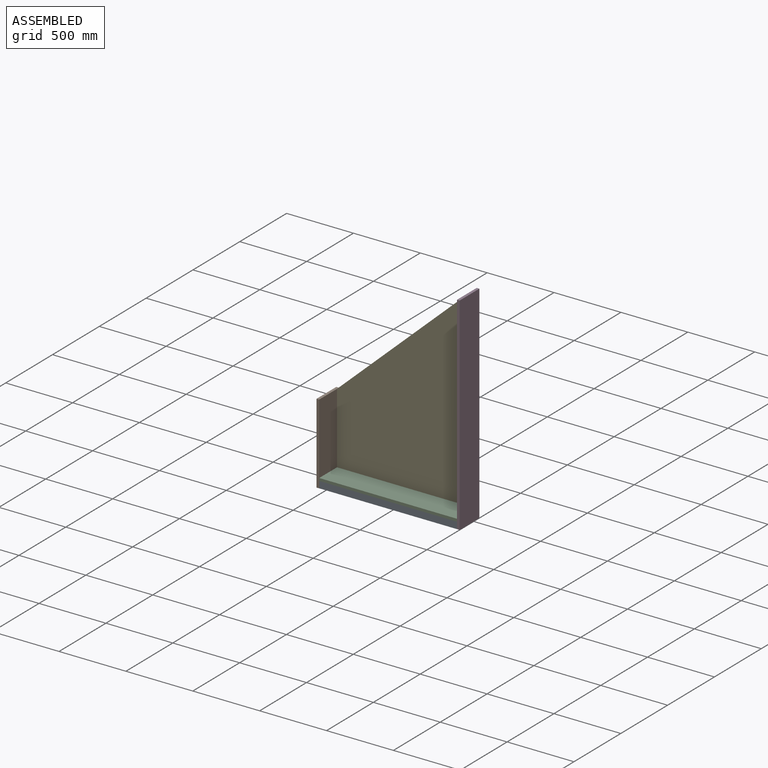
[diagram: assembled view]
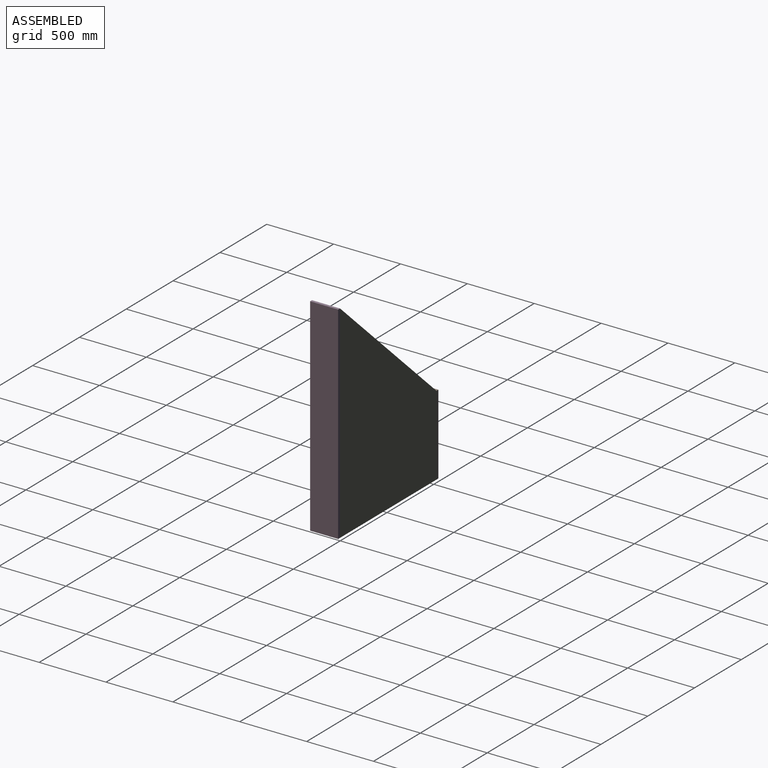
[diagram: assembled view, second angle]
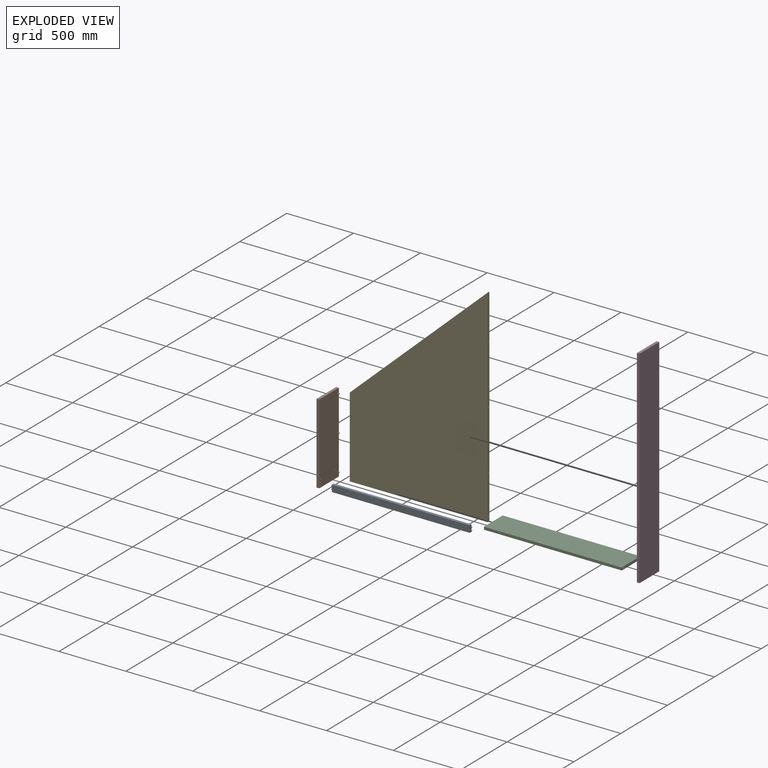
[diagram: exploded view]
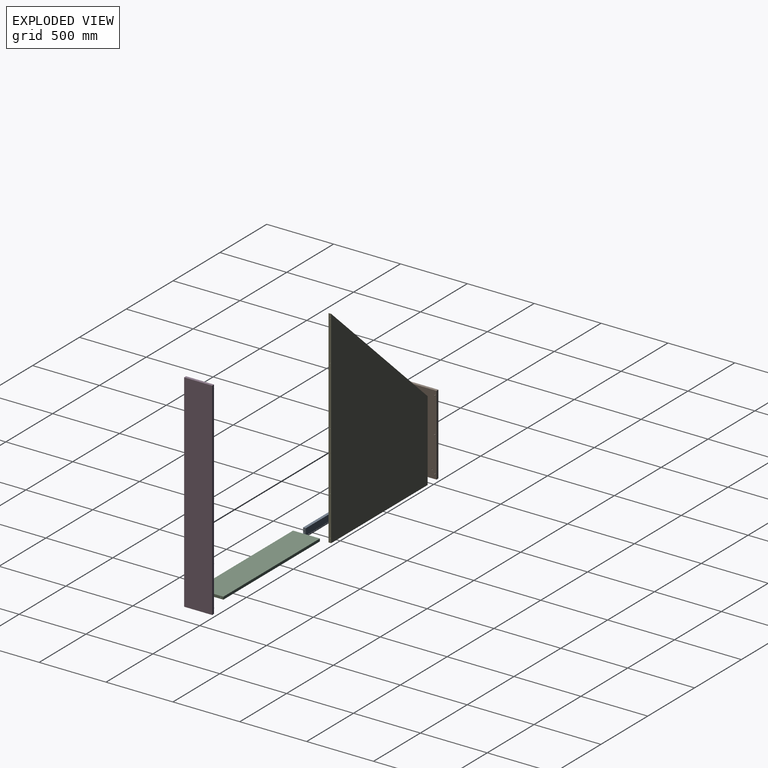
[diagram: exploded view, second angle]
ASSEMBLY  parts=5 mates=4
PART A: 14 faces, bbox 1050x20x50 mm
  f0: plane 1030x20mm, normal (0,0,1), area 20600mm2, adj f1,f3,f4,f5
  f1: plane 50x20mm, normal (-1,0,0), area 899.5mm2, adj f0,f2,f4,f5,f6,f8
  f2: plane 1030x20mm, normal (0,0,-1), area 20600mm2, adj f1,f3,f4,f5
  f3: plane 50x20mm, normal (1,0,0), area 899.5mm2, adj f0,f2,f4,f5,f10,f12
  f4: plane 1030x50mm, normal (0,-1,0), area 51500mm2, adj f0,f1,f2,f3
  f5: plane 1030x50mm, normal (0,1,0), area 51500mm2, adj f0,f1,f2,f3
  f6: cylinder r=4mm len=10mm, axis (1,0,0), area 251.3mm2, adj f1,f7
  f7: plane 8x8mm, normal (-1,0,0), area 50.3mm2, adj f6
  f8: cylinder r=4mm len=10mm, axis (1,0,0), area 251.3mm2, adj f1,f9
  f9: plane 8x8mm, normal (-1,0,0), area 50.3mm2, adj f8
  f10: cylinder r=4mm len=10mm, axis (-1,0,0), area 251.3mm2, adj f3,f11
  f11: plane 8x8mm, normal (1,0,0), area 50.3mm2, adj f10
  f12: cylinder r=4mm len=10mm, axis (-1,0,0), area 251.3mm2, adj f3,f13
  f13: plane 8x8mm, normal (1,0,0), area 50.3mm2, adj f12
PART B: 20 faces, bbox 30x210x600 mm
  f0: plane 600x210mm, normal (1,0,0), area 125648.1mm2, adj f1,f2,f3,f4,f6,f8,f10,f12
  f1: plane 210x20mm, normal (0,0,1), area 4200mm2, adj f0,f2,f4,f5
  f2: plane 600x20mm, normal (0,-1,0), area 12000mm2, adj f0,f1,f3,f5
  f3: plane 210x20mm, normal (0,0,-1), area 4200mm2, adj f0,f2,f4,f5
  f4: plane 600x20mm, normal (0,1,0), area 12000mm2, adj f0,f1,f3,f5
  f5: plane 600x210mm, normal (-1,0,0), area 126000mm2, adj f1,f2,f3,f4
  f6: cylinder r=4mm len=10mm, axis (-1,0,0), area 251.3mm2, adj f0,f7
  f7: plane 8x8mm, normal (1,0,0), area 50.3mm2, adj f6
  f8: cylinder r=4mm len=10mm, axis (-1,0,0), area 251.3mm2, adj f0,f9
  f9: plane 8x8mm, normal (1,0,0), area 50.3mm2, adj f8
  f10: cylinder r=4mm len=10mm, axis (-1,0,0), area 251.3mm2, adj f0,f11
  f11: plane 8x8mm, normal (1,0,0), area 50.3mm2, adj f10
  f12: cylinder r=4mm len=10mm, axis (1,0,0), area 251.3mm2, adj f0,f13
  f13: plane 8x8mm, normal (1,0,0), area 50.3mm2, adj f12
  f14: cylinder r=4mm len=10mm, axis (1,0,0), area 251.3mm2, adj f0,f15
  f15: plane 8x8mm, normal (1,0,0), area 50.3mm2, adj f14
  f16: cylinder r=4mm len=10mm, axis (1,0,0), area 251.3mm2, adj f0,f17
  f17: plane 8x8mm, normal (1,0,0), area 50.3mm2, adj f16
  f18: cylinder r=4mm len=10mm, axis (1,0,0), area 251.3mm2, adj f0,f19
  f19: plane 8x8mm, normal (1,0,0), area 50.3mm2, adj f18
PART C: 14 faces, bbox 1050x200x20 mm
  f0: plane 1030x20mm, normal (0,1,0), area 20600mm2, adj f1,f3,f4,f5
  f1: plane 200x20mm, normal (-1,0,0), area 3899.5mm2, adj f0,f2,f4,f5,f6,f8
  f2: plane 1030x20mm, normal (0,-1,0), area 20600mm2, adj f1,f3,f4,f5
  f3: plane 200x20mm, normal (1,0,0), area 3899.5mm2, adj f0,f2,f4,f5,f10,f12
  f4: plane 1030x200mm, normal (0,0,1), area 206000mm2, adj f0,f1,f2,f3
  f5: plane 1030x200mm, normal (0,0,-1), area 206000mm2, adj f0,f1,f2,f3
  f6: cylinder r=4mm len=10mm, axis (1,0,0), area 251.3mm2, adj f1,f7
  f7: plane 8x8mm, normal (-1,0,0), area 50.3mm2, adj f6
  f8: cylinder r=4mm len=10mm, axis (1,0,0), area 251.3mm2, adj f1,f9
  f9: plane 8x8mm, normal (-1,0,0), area 50.3mm2, adj f8
  f10: cylinder r=4mm len=10mm, axis (-1,0,0), area 251.3mm2, adj f3,f11
  f11: plane 8x8mm, normal (1,0,0), area 50.3mm2, adj f10
  f12: cylinder r=4mm len=10mm, axis (-1,0,0), area 251.3mm2, adj f3,f13
  f13: plane 8x8mm, normal (1,0,0), area 50.3mm2, adj f12
PART D: 20 faces, bbox 30x210x1550 mm
  f0: plane 1550x210mm, normal (-1,0,0), area 325148.1mm2, adj f1,f2,f3,f4,f6,f8,f10,f12
  f1: plane 210x20mm, normal (0,0,1), area 4200mm2, adj f0,f2,f4,f5
  f2: plane 1550x20mm, normal (0,-1,0), area 31000mm2, adj f0,f1,f3,f5
  f3: plane 210x20mm, normal (0,0,-1), area 4200mm2, adj f0,f2,f4,f5
  f4: plane 1550x20mm, normal (0,1,0), area 31000mm2, adj f0,f1,f3,f5
  f5: plane 1550x210mm, normal (1,0,0), area 325500mm2, adj f1,f2,f3,f4
  f6: cylinder r=4mm len=10mm, axis (1,0,0), area 251.3mm2, adj f0,f7
  f7: plane 8x8mm, normal (-1,0,0), area 50.3mm2, adj f6
  f8: cylinder r=4mm len=10mm, axis (1,0,0), area 251.3mm2, adj f0,f9
  f9: plane 8x8mm, normal (-1,0,0), area 50.3mm2, adj f8
  f10: cylinder r=4mm len=10mm, axis (1,0,0), area 251.3mm2, adj f0,f11
  f11: plane 8x8mm, normal (-1,0,0), area 50.3mm2, adj f10
  f12: cylinder r=4mm len=10mm, axis (1,0,0), area 251.3mm2, adj f0,f13
  f13: plane 8x8mm, normal (-1,0,0), area 50.3mm2, adj f12
  f14: cylinder r=4mm len=10mm, axis (1,0,0), area 251.3mm2, adj f0,f15
  f15: plane 8x8mm, normal (-1,0,0), area 50.3mm2, adj f14
  f16: cylinder r=4mm len=10mm, axis (-1,0,0), area 251.3mm2, adj f0,f17
  f17: plane 8x8mm, normal (-1,0,0), area 50.3mm2, adj f16
  f18: cylinder r=4mm len=10mm, axis (-1,0,0), area 251.3mm2, adj f0,f19
  f19: plane 8x8mm, normal (-1,0,0), area 50.3mm2, adj f18
PART E: 22 faces, bbox 1030x20x1550 mm
  f0: plane 600x20mm, normal (-1,0,0), area 11849.2mm2, adj f2,f3,f4,f5,f16,f18,f20
  f1: plane 1550x20mm, normal (1,0,0), area 30748.7mm2, adj f2,f3,f4,f5,f6,f8,f10,f12
  f2: plane 1030x20mm, normal (0,0,-1), area 20600mm2, adj f0,f1,f4,f5
  f3: plane 1030x950mm, normal (-0.68,0,0.74), area 28024.3mm2, adj f0,f1,f4,f5
  f4: plane 1550x1030mm, normal (0,-1,0), area 1107250mm2, adj f0,f1,f2,f3
  f5: plane 1550x1030mm, normal (0,1,0), area 1107250mm2, adj f0,f1,f2,f3
  f6: cylinder r=4mm len=10mm, axis (1,0,0), area 251.3mm2, adj f1,f7
  f7: plane 8x8mm, normal (1,0,0), area 50.3mm2, adj f6
  f8: cylinder r=4mm len=10mm, axis (1,0,0), area 251.3mm2, adj f1,f9
  f9: plane 8x8mm, normal (1,0,0), area 50.3mm2, adj f8
  f10: cylinder r=4mm len=10mm, axis (1,0,0), area 251.3mm2, adj f1,f11
  f11: plane 8x8mm, normal (1,0,0), area 50.3mm2, adj f10
  f12: cylinder r=4mm len=10mm, axis (1,0,0), area 251.3mm2, adj f1,f13
  f13: plane 8x8mm, normal (1,0,0), area 50.3mm2, adj f12
  f14: cylinder r=4mm len=10mm, axis (1,0,0), area 251.3mm2, adj f1,f15
  f15: plane 8x8mm, normal (1,0,0), area 50.3mm2, adj f14
  f16: cylinder r=4mm len=10mm, axis (-1,0,0), area 251.3mm2, adj f0,f17
  f17: plane 8x8mm, normal (-1,0,0), area 50.3mm2, adj f16
  f18: cylinder r=4mm len=10mm, axis (-1,0,0), area 251.3mm2, adj f0,f19
  f19: plane 8x8mm, normal (-1,0,0), area 50.3mm2, adj f18
  f20: cylinder r=4mm len=10mm, axis (-1,0,0), area 251.3mm2, adj f0,f21
  f21: plane 8x8mm, normal (-1,0,0), area 50.3mm2, adj f20
PLACE A t=(0,-179.89,-750)mm
PLACE B t=(-525,-95,-475)mm
PLACE C t=(0,-100,-715)mm
PLACE D t=(525,-95,0)mm
PLACE E at identity fixed
MATE fastened A.f6 <-> B.f14  axis (-1,0,0) through (-525,-189.89,-739)mm
MATE fastened D.f14 <-> E.f10  axis (-1,0,0) through (505,0,0)mm
MATE fastened C.f6 <-> B.f16  axis (-1,0,0) through (-525,-24,-715)mm
MATE fastened B.f10 <-> E.f16  axis (1,0,0) through (-505,0,-475)mm
